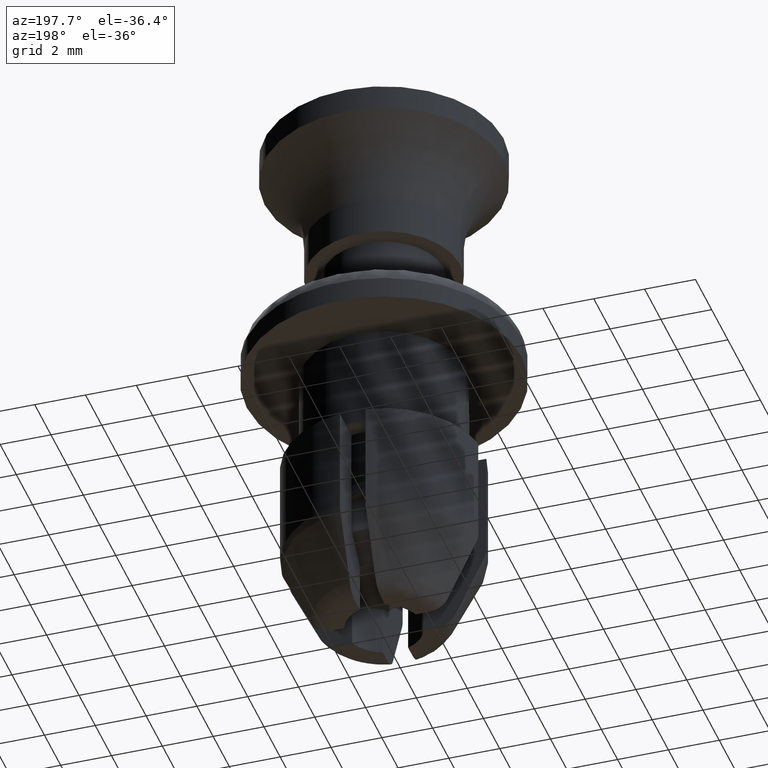
[diagram: clean part render]
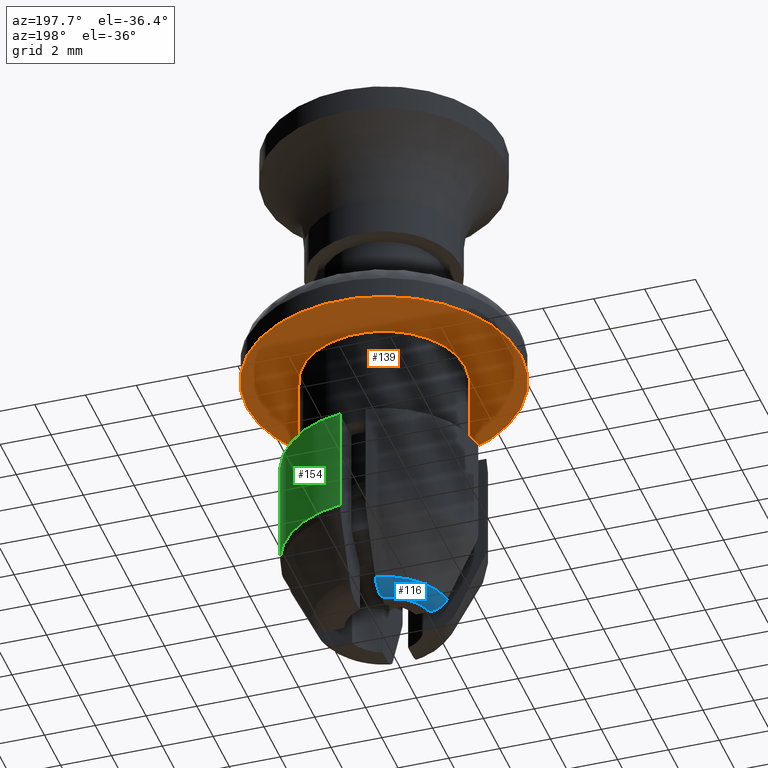
[diagram: same view with three faces highlighted in distinct colors, each labeled with its STEP entity id]
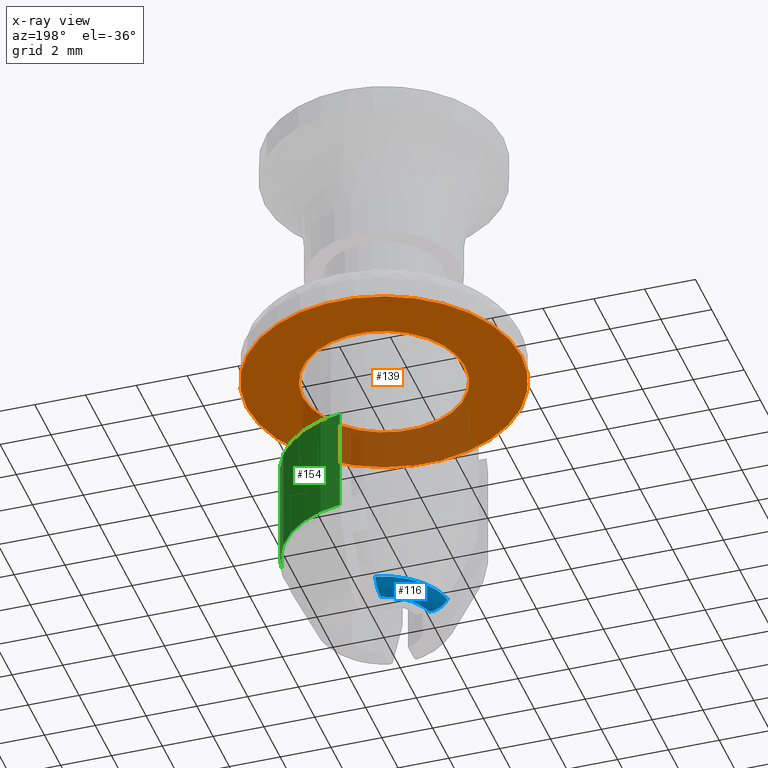
[diagram: x-ray of the same camera — body ghosted, the three highlighted faces saturated]
A machine part, auxiliary view with three faces highlighted in distinct colors.
The next image is the same camera in x-ray (body ghosted, the three faces saturated) — at least one of them is partly hidden behind the body in this view.
Their STEP definitions:

[orange] entity #139 — the highlighted planar face has unit normal (0, 0, 1).
#139=ADVANCED_FACE('',(#464,#465),#463,.F.);
#463=PLANE('',#1202);
#464=FACE_OUTER_BOUND('',#1203,.T.);
#465=FACE_BOUND('',#1204,.T.);
#1199=CARTESIAN_POINT('',(-7.02000000000E+00,-1.12236892330E+01,-2.00000000000E+00));
#1200=DIRECTION('',(0.00000000000E+00,0.00000000000E+00,1.00000000000E+00));
#1201=DIRECTION('',(1.00000000000E+00,0.00000000000E+00,0.00000000000E+00));
#1202=AXIS2_PLACEMENT_3D('',#1199,#1200,#1201);
#1203=EDGE_LOOP('',(#1770,#1771));
#1204=EDGE_LOOP('',(#1772,#1773));
#1770=ORIENTED_EDGE('',*,*,#2117,.T.);
#1771=ORIENTED_EDGE('',*,*,#2118,.T.);
#1772=ORIENTED_EDGE('',*,*,#2119,.T.);
#1773=ORIENTED_EDGE('',*,*,#2120,.T.);
#2117=EDGE_CURVE('',#2952,#2953,#2954,.T.);
#2118=EDGE_CURVE('',#2953,#2952,#2960,.T.);
#2119=EDGE_CURVE('',#2966,#2967,#2968,.T.);
#2120=EDGE_CURVE('',#2967,#2966,#2974,.T.);
#2952=VERTEX_POINT('',#4015);
#2953=VERTEX_POINT('',#4016);
#2954=CIRCLE('',#4020,5.40000000000E+00);
#2960=CIRCLE('',#4024,5.40000000000E+00);
#2966=VERTEX_POINT('',#4025);
#2967=VERTEX_POINT('',#4026);
#2968=CIRCLE('',#4030,3.20000000000E+00);
#2974=CIRCLE('',#4034,3.20000000000E+00);
#4015=CARTESIAN_POINT('',(-5.40000000000E+00,0.00000000000E+00,-2.00000000000E+00));
#4016=CARTESIAN_POINT('',(5.40000000000E+00,2.96059473233E-16,-2.00000000000E+00));
#4017=CARTESIAN_POINT('',(0.00000000000E+00,0.00000000000E+00,-2.00000000000E+00));
#4018=DIRECTION('',(-0.00000000000E+00,0.00000000000E+00,-1.00000000000E+00));
#4019=DIRECTION('',(-1.00000000000E+00,-1.22460635382E-16,0.00000000000E+00));
#4020=AXIS2_PLACEMENT_3D('',#4017,#4018,#4019);
#4021=CARTESIAN_POINT('',(0.00000000000E+00,0.00000000000E+00,-2.00000000000E+00));
#4022=DIRECTION('',(-0.00000000000E+00,0.00000000000E+00,-1.00000000000E+00));
#4023=DIRECTION('',(-1.00000000000E+00,-1.22460635382E-16,0.00000000000E+00));
#4024=AXIS2_PLACEMENT_3D('',#4021,#4022,#4023);
#4025=CARTESIAN_POINT('',(-3.20000000000E+00,0.00000000000E+00,-2.00000000000E+00));
#4026=CARTESIAN_POINT('',(3.20000000000E+00,4.44089209850E-16,-2.00000000000E+00));
#4027=CARTESIAN_POINT('',(0.00000000000E+00,0.00000000000E+00,-2.00000000000E+00));
#4028=DIRECTION('',(0.00000000000E+00,0.00000000000E+00,1.00000000000E+00));
#4029=DIRECTION('',(-1.00000000000E+00,-1.22460635382E-16,0.00000000000E+00));
#4030=AXIS2_PLACEMENT_3D('',#4027,#4028,#4029);
#4031=CARTESIAN_POINT('',(0.00000000000E+00,0.00000000000E+00,-2.00000000000E+00));
#4032=DIRECTION('',(0.00000000000E+00,0.00000000000E+00,1.00000000000E+00));
#4033=DIRECTION('',(-1.00000000000E+00,-1.22460635382E-16,0.00000000000E+00));
#4034=AXIS2_PLACEMENT_3D('',#4031,#4032,#4033);

[blue] entity #116 — the highlighted face is a freeform B-spline surface patch.
#116=ADVANCED_FACE('',(#233),#232,.T.);
#232=( BOUNDED_SURFACE() B_SPLINE_SURFACE( 2,2,((#1035,#1036,#1037,#1038,#1039),(#1040,#1041,#1042,#1043,#1044),(#1045,#1046,#1047,#1048,#1049)), .UNSPECIFIED.,.F.,.F.,.F.) B_SPLINE_SURFACE_WITH_KNOTS((3,3),(3,2,3),(0.00000000000E+00,1.00000000000E+00),(0.00000000000E+00,5.00000000000E-01,1.00000000000E+00), .UNSPECIFIED. ) GEOMETRIC_REPRESENTATION_ITEM() RATIONAL_B_SPLINE_SURFACE(((1.00000000000E+00,8.39878270057E-01,1.00000000000E+00,8.39878270057E-01,1.00000000000E+00),(8.25493563183E-01,6.93314105789E-01,8.25493563183E-01,6.93314105789E-01,8.25493563183E-01),(1.00000000000E+00,8.39878270057E-01,1.00000000000E+00,8.39878270057E-01,1.00000000000E+00))) REPRESENTATION_ITEM('') SURFACE() );
#233=FACE_OUTER_BOUND('',#1050,.T.);
#1035=CARTESIAN_POINT('',(-2.65968396978E+00,4.99584018896E-01,-1.30583932628E+01));
#1036=CARTESIAN_POINT('',(-2.46399959823E+00,4.62827477184E-01,-1.35003000000E+01));
#1037=CARTESIAN_POINT('',(-1.98763968908E+00,3.73350005214E-01,-1.35003000000E+01));
#1038=CARTESIAN_POINT('',(-1.51127977993E+00,2.83872533245E-01,-1.35003000000E+01));
#1039=CARTESIAN_POINT('',(-1.31559540838E+00,2.47115991533E-01,-1.30583932628E+01));
#1040=CARTESIAN_POINT('',(-2.31810531441E+00,2.31807948663E+00,-1.30583932628E+01));
#1041=CARTESIAN_POINT('',(-2.14755235143E+00,2.14752842391E+00,-1.35003000000E+01));
#1042=CARTESIAN_POINT('',(-1.73237052926E+00,1.73235122759E+00,-1.35003000000E+01));
#1043=CARTESIAN_POINT('',(-1.31718870709E+00,1.31717403128E+00,-1.35003000000E+01));
#1044=CARTESIAN_POINT('',(-1.14663574410E+00,1.14662296856E+00,-1.30583932628E+01));
#1045=CARTESIAN_POINT('',(-4.99613652602E-01,2.65967840334E+00,-1.30583932628E+01));
#1046=CARTESIAN_POINT('',(-4.62854930611E-01,2.46399444133E+00,-1.35003000000E+01));
#1047=CARTESIAN_POINT('',(-3.73372151128E-01,1.98763552916E+00,-1.35003000000E+01));
#1048=CARTESIAN_POINT('',(-2.83889371644E-01,1.51127661698E+00,-1.35003000000E+01));
#1049=CARTESIAN_POINT('',(-2.47130649654E-01,1.31559265497E+00,-1.30583932628E+01));
#1050=EDGE_LOOP('',(#1636,#1637,#1638,#1639));
#1636=ORIENTED_EDGE('',*,*,#2028,.F.);
#1637=ORIENTED_EDGE('',*,*,#2029,.T.);
#1638=ORIENTED_EDGE('',*,*,#2030,.F.);
#1639=ORIENTED_EDGE('',*,*,#2031,.F.);
#2028=EDGE_CURVE('',#2356,#2357,#2358,.T.);
#2029=EDGE_CURVE('',#2356,#2364,#2365,.T.);
#2030=EDGE_CURVE('',#2371,#2364,#2372,.T.);
#2031=EDGE_CURVE('',#2357,#2371,#2378,.T.);
#2356=VERTEX_POINT('',#3619);
#2357=VERTEX_POINT('',#3620);
#2358=(BOUNDED_CURVE() B_SPLINE_CURVE(3,(#3621,#3622,#3623,#3624,#3625,#3626),.UNSPECIFIED.,.F.,.F.) B_SPLINE_CURVE_WITH_KNOTS((4,2,4),(4.44792719944E-03,4.88227830136E-03,5.31662940329E-03),.UNSPECIFIED.) CURVE() GEOMETRIC_REPRESENTATION_ITEM() RATIONAL_B_SPLINE_CURVE((1.00000000000E+00,1.00000000000E+00,1.00000000000E+00,1.00000000000E+00,1.00000000000E+00,1.00000000000E+00)) REPRESENTATION_ITEM('') );
#2364=VERTEX_POINT('',#3627);
#2365=CIRCLE('',#3631,2.70602087899E+00);
#2371=VERTEX_POINT('',#3632);
#2372=(BOUNDED_CURVE() B_SPLINE_CURVE(3,(#3633,#3634,#3635,#3636,#3637,#3638),.UNSPECIFIED.,.F.,.F.) B_SPLINE_CURVE_WITH_KNOTS((4,2,4),(8.22365290158E-04,1.25738974353E-03,1.69241419689E-03),.UNSPECIFIED.) CURVE() GEOMETRIC_REPRESENTATION_ITEM() RATIONAL_B_SPLINE_CURVE((1.00000000000E+00,1.00000000000E+00,1.00000000000E+00,1.00000000000E+00,1.00000000000E+00,1.00000000000E+00)) REPRESENTATION_ITEM('') );
#2378=CIRCLE('',#3642,2.02240000000E+00);
#3619=CARTESIAN_POINT('',(-2.65942644146E+00,5.00000000000E-01,-1.30587841873E+01));
#3620=CARTESIAN_POINT('',(-1.95961775865E+00,5.00000000000E-01,-1.35003000000E+01));
#3621=CARTESIAN_POINT('',(-2.65942644146E+00,5.00000000000E-01,-1.30587841873E+01));
#3622=CARTESIAN_POINT('',(-2.59875993854E+00,5.00000000000E-01,-1.31909101642E+01));
#3623=CARTESIAN_POINT('',(-2.49690446029E+00,5.00000000000E-01,-1.33055603408E+01));
#3624=CARTESIAN_POINT('',(-2.25128194764E+00,5.00000000000E-01,-1.34591074517E+01));
#3625=CARTESIAN_POINT('',(-2.10574025357E+00,5.00000000000E-01,-1.35003000000E+01));
#3626=CARTESIAN_POINT('',(-1.95961775865E+00,5.00000000000E-01,-1.35003000000E+01));
#3627=CARTESIAN_POINT('',(-5.00000000000E-01,2.65942644146E+00,-1.30587841873E+01));
#3628=CARTESIAN_POINT('',(0.00000000000E+00,0.00000000000E+00,-1.30587841873E+01));
#3629=DIRECTION('',(0.00000000000E+00,0.00000000000E+00,-1.00000000000E+00));
#3630=DIRECTION('',(1.00000000000E+00,-0.00000000000E+00,-0.00000000000E+00));
#3631=AXIS2_PLACEMENT_3D('',#3628,#3629,#3630);
#3632=CARTESIAN_POINT('',(-5.00000000000E-01,1.95961775865E+00,-1.35003000000E+01));
#3633=CARTESIAN_POINT('',(-5.00000000000E-01,1.95961775865E+00,-1.35003000000E+01));
#3634=CARTESIAN_POINT('',(-5.00000000000E-01,2.10601760213E+00,-1.35003000000E+01));
#3635=CARTESIAN_POINT('',(-5.00000000000E-01,2.25086928109E+00,-1.34593634420E+01));
#3636=CARTESIAN_POINT('',(-5.00000000000E-01,2.49730212687E+00,-1.33053137274E+01));
#3637=CARTESIAN_POINT('',(-5.00000000000E-01,2.59885249439E+00,-1.31907085862E+01));
#3638=CARTESIAN_POINT('',(-5.00000000000E-01,2.65942644146E+00,-1.30587841873E+01));
#3639=CARTESIAN_POINT('',(0.00000000000E+00,0.00000000000E+00,-1.35003000000E+01));
#3640=DIRECTION('',(0.00000000000E+00,0.00000000000E+00,-1.00000000000E+00));
#3641=DIRECTION('',(1.00000000000E+00,-0.00000000000E+00,-0.00000000000E+00));
#3642=AXIS2_PLACEMENT_3D('',#3639,#3640,#3641);

[green] entity #154 — the highlighted cylindrical surface (partial cylindrical patch) has radius 3.9 mm, axis along (0, 0, 1).
#154=ADVANCED_FACE('',(#615),#614,.T.);
#614=CYLINDRICAL_SURFACE('',#1292,3.90000000000E+00);
#615=FACE_OUTER_BOUND('',#1293,.T.);
#1289=CARTESIAN_POINT('',(0.00000000000E+00,0.00000000000E+00,0.00000000000E+00));
#1290=DIRECTION('',(-0.00000000000E+00,-0.00000000000E+00,1.00000000000E+00));
#1291=DIRECTION('',(1.00000000000E+00,-0.00000000000E+00,-0.00000000000E+00));
#1292=AXIS2_PLACEMENT_3D('',#1289,#1290,#1291);
#1293=EDGE_LOOP('',(#1834,#1835,#1836,#1837));
#1834=ORIENTED_EDGE('',*,*,#2079,.F.);
#1835=ORIENTED_EDGE('',*,*,#2108,.F.);
#1836=ORIENTED_EDGE('',*,*,#2014,.F.);
#1837=ORIENTED_EDGE('',*,*,#2137,.T.);
#2014=EDGE_CURVE('',#2252,#2259,#2260,.T.);
#2079=EDGE_CURVE('',#2697,#2704,#2705,.T.);
#2108=EDGE_CURVE('',#2259,#2697,#2894,.T.);
#2137=EDGE_CURVE('',#2252,#2704,#3080,.T.);
#2252=VERTEX_POINT('',#3535);
#2259=VERTEX_POINT('',#3539);
#2260=LINE('',#3540,#3541);
#2697=VERTEX_POINT('',#3849);
#2704=VERTEX_POINT('',#3856);
#2705=LINE('',#3857,#3858);
#2894=CIRCLE('',#3978,3.90000000000E+00);
#3080=CIRCLE('',#4106,3.90000000000E+00);
#3535=CARTESIAN_POINT('',(5.00000000000E-01,3.86781592116E+00,-6.10000000000E+00));
#3539=CARTESIAN_POINT('',(5.00000000000E-01,3.86781592116E+00,-1.03339000000E+01));
#3540=CARTESIAN_POINT('',(5.00000000000E-01,3.86781592116E+00,-6.10000000000E+00));
#3541=VECTOR('',#3542,4.23390000000E+00);
#3542=DIRECTION('',(0.00000000000E+00,0.00000000000E+00,-1.00000000000E+00));
#3849=CARTESIAN_POINT('',(3.86781592116E+00,5.00000000000E-01,-1.03339000000E+01));
#3856=CARTESIAN_POINT('',(3.86781592116E+00,5.00000000000E-01,-6.10000000000E+00));
#3857=CARTESIAN_POINT('',(3.86781592116E+00,5.00000000000E-01,-1.03339000000E+01));
#3858=VECTOR('',#3859,4.23390000000E+00);
#3859=DIRECTION('',(0.00000000000E+00,0.00000000000E+00,1.00000000000E+00));
#3975=CARTESIAN_POINT('',(0.00000000000E+00,0.00000000000E+00,-1.03339000000E+01));
#3976=DIRECTION('',(0.00000000000E+00,0.00000000000E+00,-1.00000000000E+00));
#3977=DIRECTION('',(1.00000000000E+00,-0.00000000000E+00,-0.00000000000E+00));
#3978=AXIS2_PLACEMENT_3D('',#3975,#3976,#3977);
#4103=CARTESIAN_POINT('',(0.00000000000E+00,0.00000000000E+00,-6.10000000000E+00));
#4104=DIRECTION('',(0.00000000000E+00,0.00000000000E+00,-1.00000000000E+00));
#4105=DIRECTION('',(1.00000000000E+00,-0.00000000000E+00,-0.00000000000E+00));
#4106=AXIS2_PLACEMENT_3D('',#4103,#4104,#4105);